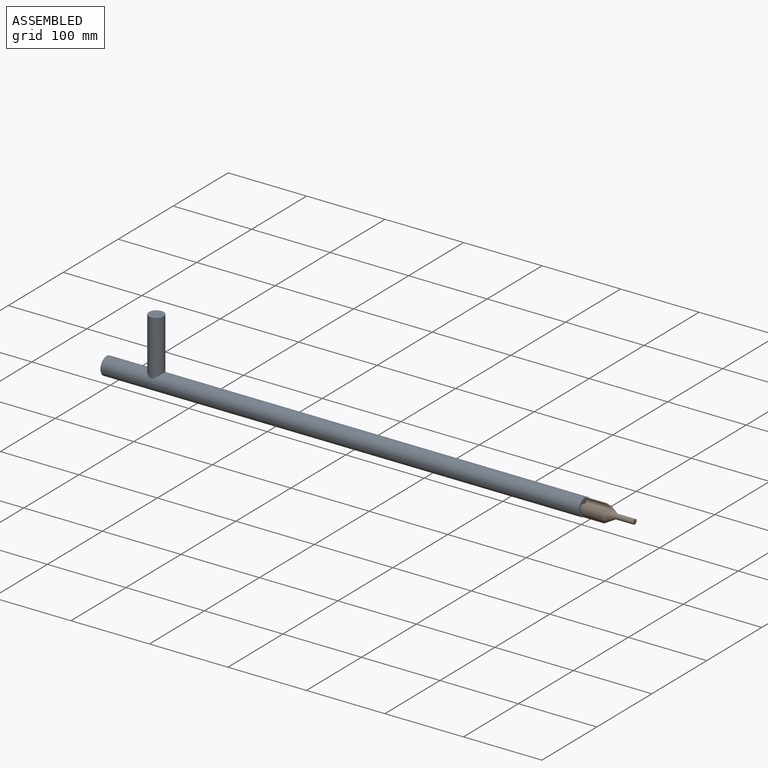
[diagram: assembled view]
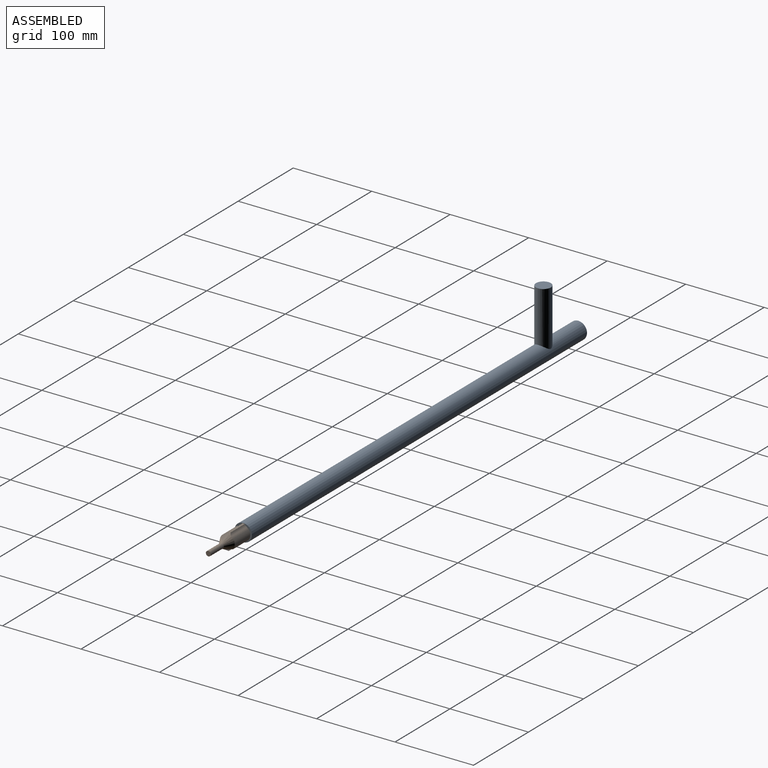
[diagram: assembled view, second angle]
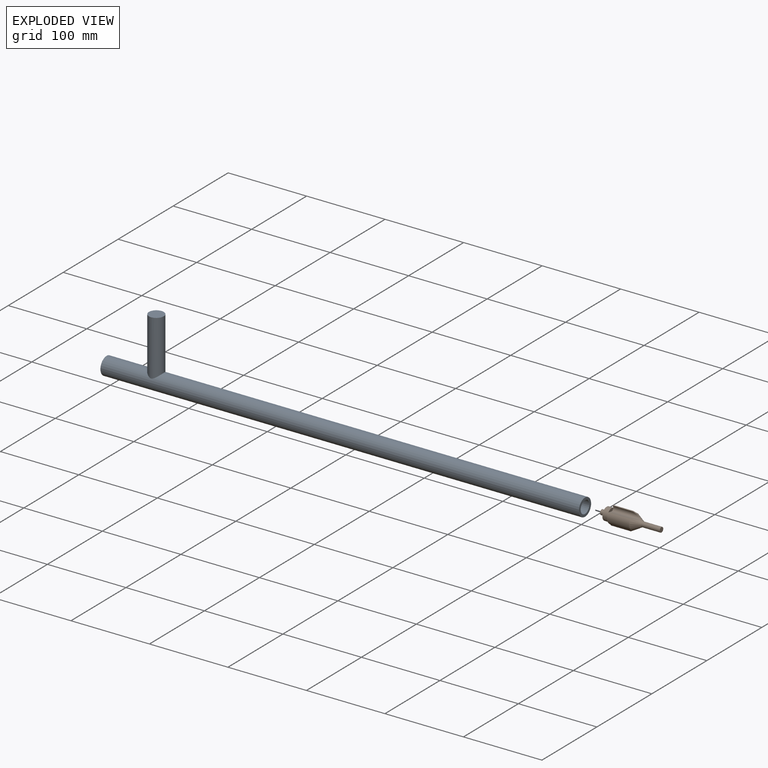
[diagram: exploded view]
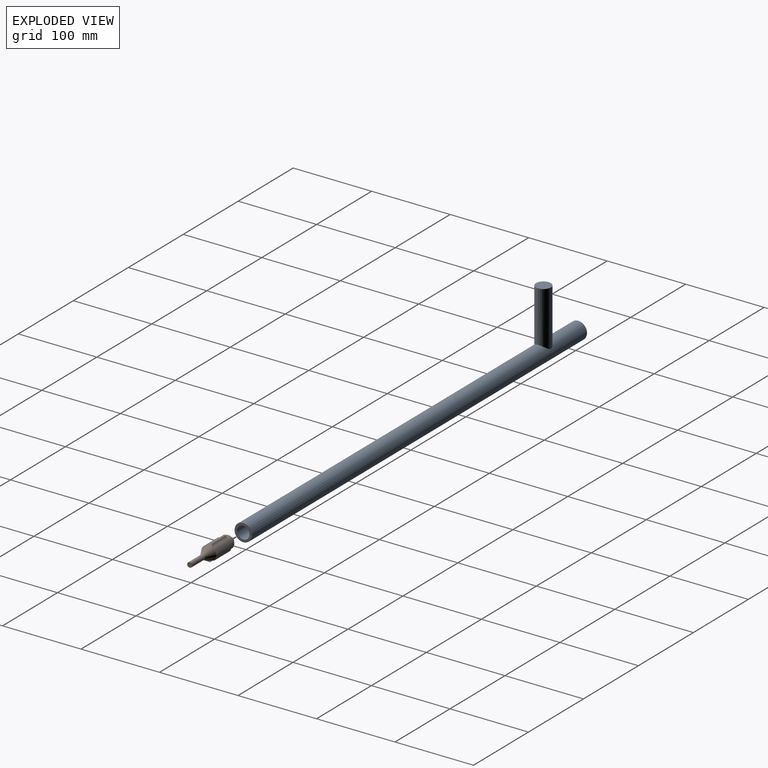
[diagram: exploded view, second angle]
ASSEMBLY  parts=2 mates=2
PART A: 9 faces, bbox 609.6x22.2x87.3 mm
  f0: cylinder r=7.94mm len=609.6mm, axis (-1,0,0), area 30025.9mm2, adj f2,f3,f6,f7,f8
  f1: cylinder r=11.11mm len=609.6mm, axis (-1,0,0), area 42240.1mm2, adj f2,f3,f5
  f2: plane 22.23x22.23mm, normal (1,0,0), area 190mm2, adj f0,f1
  f3: plane 22.23x22.23mm, normal (-1,0,0), area 190mm2, adj f0,f1
  f4: plane 19.05x19.05mm, normal (0,0,1), area 285mm2, adj f5
  f5: cylinder r=9.53mm len=70.48mm, axis (0,0,-1), area 4043.7mm2, adj f1,f4
  f6: cylinder r=9.53mm len=15.88mm, axis (0,0,-1), area 111.3mm2, adj f0,f8
  f7: cylinder r=9.53mm len=15.88mm, axis (0,0,-1), area 111.3mm2, adj f0,f8
  f8: plane 19.05x15.88mm, normal (0,0,-1), area 262.3mm2, adj f0,f6,f7
PART B: 20 faces, bbox 76.2x22.2x22.2 mm
  f0: cylinder r=11.11mm len=25.4mm, axis (-1,0,0), area 59.6mm2, adj f2,f3,f14,f17
  f1: cylinder r=11.11mm len=25.4mm, axis (-1,0,0), area 59.6mm2, adj f2,f3,f15,f19
  f2: plane 22.23x19.05mm, normal (-1,0,0), area 201.6mm2, adj f0,f1,f4,f5,f9,f14,f15,f16
  f3: cone r=11.11mm half-angle=30deg, axis (-1,0,0), area 403.2mm2, adj f0,f1,f4,f5,f10,f14,f15,f16
  f4: cylinder r=23.11mm len=36.4mm, axis (-1,0,0), area 246.1mm2, adj f2,f3,f14,f18
  f5: cylinder r=23.11mm len=36.4mm, axis (-1,0,0), area 246.1mm2, adj f2,f3,f15,f16
  f6: cylinder r=7.94mm len=15.88mm, axis (1,0,0), area 316.7mm2, adj f7,f8
  f7: plane 15.88x15.88mm, normal (-1,0,0), area 166.3mm2, adj f6,f12
  f8: plane 15.88x15.88mm, normal (1,0,0), area 166.3mm2, adj f6,f9
  f9: cylinder r=3.17mm len=6.35mm, axis (-1,0,0), area 15.8mm2, adj f2,f8
  f10: cylinder r=3.17mm len=23.56mm, axis (-1,0,0), area 470mm2, adj f3,f11
  f11: plane 6.35x6.35mm, normal (1,0,0), area 31.7mm2, adj f10
  f12: cylinder r=3.17mm len=6.35mm, axis (-1,0,0), area 126.7mm2, adj f7,f13
  f13: plane 6.35x6.35mm, normal (-1,0,0), area 31.7mm2, adj f12
  f14: cylinder r=3.81mm len=36.4mm, axis (-1,0,0), area 230.7mm2, adj f0,f2,f3,f4
  f15: cylinder r=3.81mm len=36.4mm, axis (-1,0,0), area 230.7mm2, adj f1,f2,f3,f5
  f16: cylinder r=9.53mm len=28.15mm, axis (-1,0,0), area 458.3mm2, adj f2,f3,f5,f17
  f17: cylinder r=8.94mm len=28.15mm, axis (-1,0,0), area 109.2mm2, adj f0,f2,f3,f16
  f18: cylinder r=9.53mm len=28.15mm, axis (-1,0,0), area 458.3mm2, adj f2,f3,f4,f19
  f19: cylinder r=8.94mm len=28.15mm, axis (-1,0,0), area 109.2mm2, adj f1,f2,f3,f18
PLACE A at identity
PLACE B rot(axis=(1,0,0),0deg) t=(304.8,0,0)mm
MATE fastened B.f18 <-> A.f1  axis (-1,0,0) through (305.59,0,0)mm
MATE cylindrical A.f0 <-> B.f0  axis (-1,0,0) through (304.8,0,0)mm
